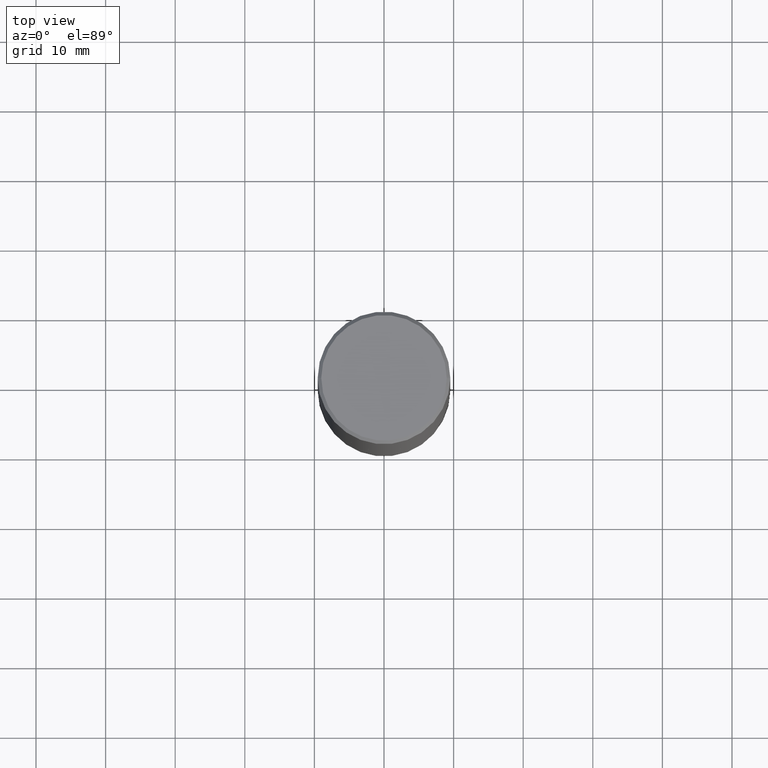
[diagram: clean part render]
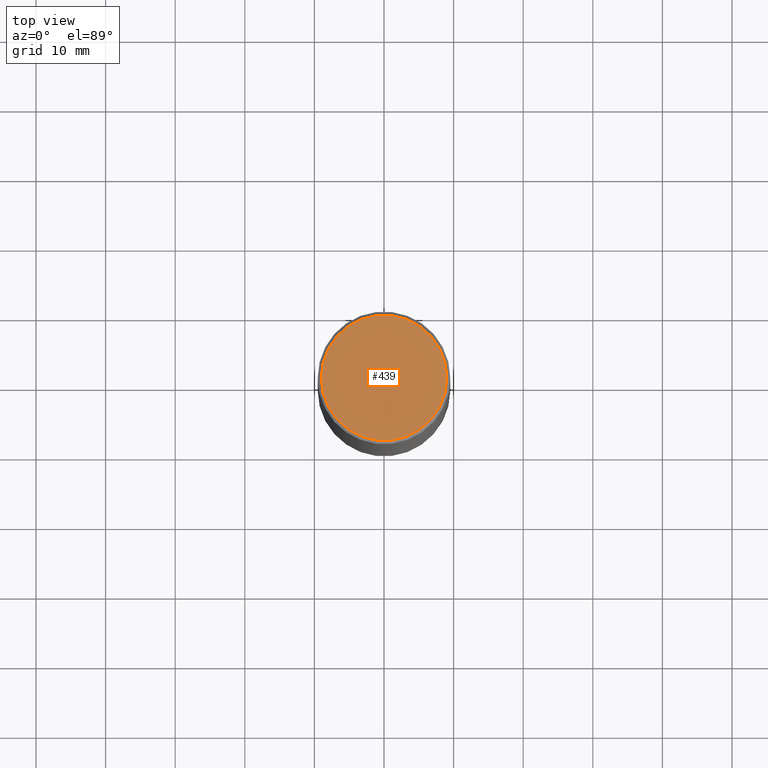
[diagram: same view with one face highlighted and labeled with its STEP entity id]
A machine part, top view. The second image highlights one B-rep face of the part: STEP entity #439.
In plain terms, the highlighted planar face has unit normal (0, -0, -1).
Its self-contained STEP definition (entity closure, byte-faithful):
#19 = CARTESIAN_POINT ( 'NONE',  ( -1.043851414335219820E-46, 1.490343170380447200E-32, 4.268512490100411279E-18 ) ) ;
#54 = CARTESIAN_POINT ( 'NONE',  ( -1.043851414335219820E-46, 1.490343170380447200E-32, 4.268512490100411279E-18 ) ) ;
#70 = DIRECTION ( 'NONE',  ( -1.000000000000000000, 6.982962677686265922E-15, -4.876176775795935793E-29 ) ) ;
#81 = DIRECTION ( 'NONE',  ( -2.445468806185136597E-29, 3.491481338843145583E-15, 1.000000000000000000 ) ) ;
#97 = EDGE_LOOP ( 'NONE', ( #103, #336 ) ) ;
#103 = ORIENTED_EDGE ( 'NONE', *, *, #492, .T. ) ;
#120 = DIRECTION ( 'NONE',  ( -2.445468806185136597E-29, 3.491481338843145583E-15, 1.000000000000000000 ) ) ;
#137 = AXIS2_PLACEMENT_3D ( 'NONE', #303, #387, #70 ) ;
#144 = VERTEX_POINT ( 'NONE', #441 ) ;
#160 = AXIS2_PLACEMENT_3D ( 'NONE', #19, #81, #200 ) ;
#188 = CIRCLE ( 'NONE', #160, 0.3549999999999992051 ) ;
#200 = DIRECTION ( 'NONE',  ( 1.000000000000000000, -6.982962677686266711E-15, 4.876231632511998833E-29 ) ) ;
#216 = CARTESIAN_POINT ( 'NONE',  ( -0.3549999999999992051, 2.513866563967050730E-15, 4.268512490082953109E-18 ) ) ;
#219 = VERTEX_POINT ( 'NONE', #216 ) ;
#299 = PLANE ( 'NONE',  #137 ) ;
#303 = CARTESIAN_POINT ( 'NONE',  ( 2.478951750578619081E-15, 0.3549999999999992051, -1.237341619044263666E-15 ) ) ;
#311 = AXIS2_PLACEMENT_3D ( 'NONE', #54, #120, #429 ) ;
#326 = CIRCLE ( 'NONE', #311, 0.3549999999999992051 ) ;
#336 = ORIENTED_EDGE ( 'NONE', *, *, #470, .T. ) ;
#356 = FACE_OUTER_BOUND ( 'NONE', #97, .T. ) ;
#387 = DIRECTION ( 'NONE',  ( 2.438088387897960049E-29, -3.491481338843145188E-15, -1.000000000000000000 ) ) ;
#429 = DIRECTION ( 'NONE',  ( 1.000000000000000000, -6.982962677686266711E-15, 4.876231632511998833E-29 ) ) ;
#439 = ADVANCED_FACE ( 'NONE', ( #356 ), #299, .F. ) ;
#441 = CARTESIAN_POINT ( 'NONE',  ( 0.3549999999999992051, -2.538996582575035920E-15, 4.268512490117958041E-18 ) ) ;
#470 = EDGE_CURVE ( 'NONE', #144, #219, #326, .T. ) ;
#492 = EDGE_CURVE ( 'NONE', #219, #144, #188, .T. ) ;